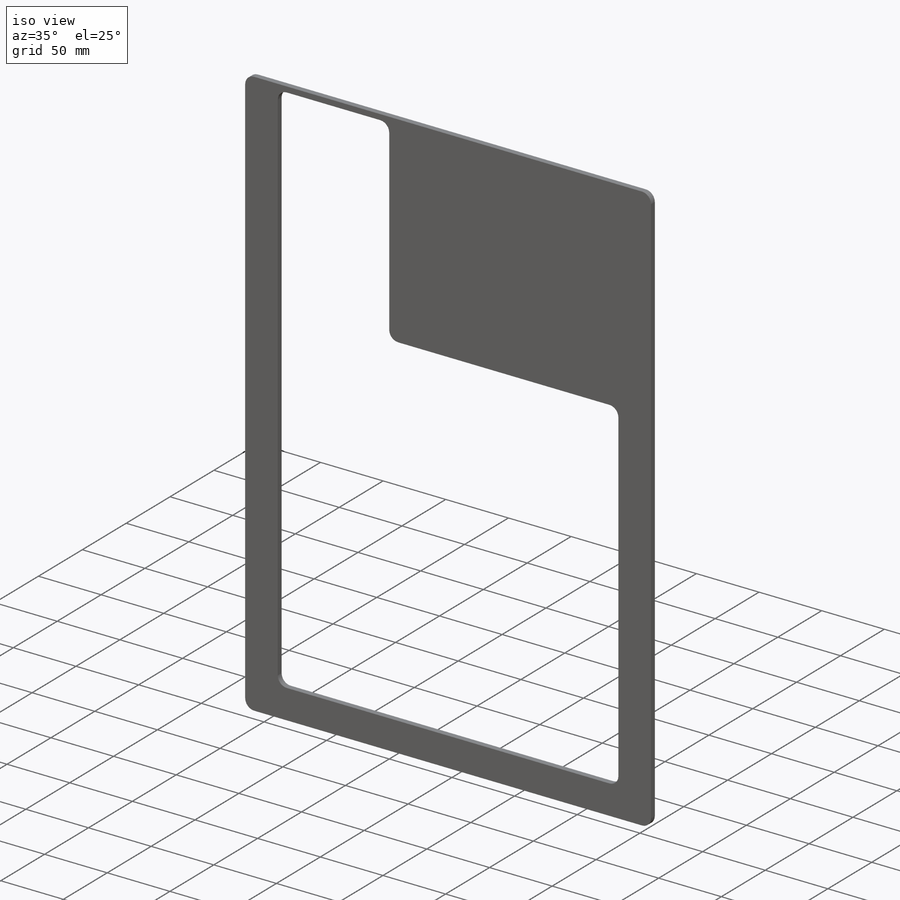
[diagram: iso view]
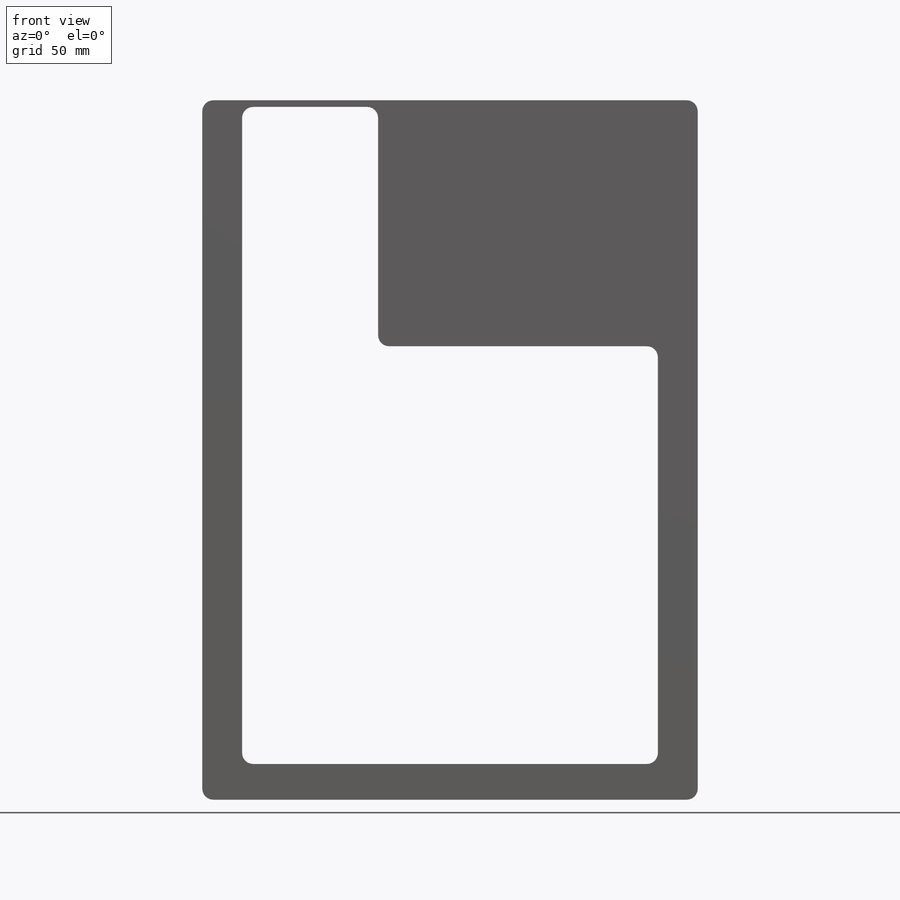
[diagram: front view]
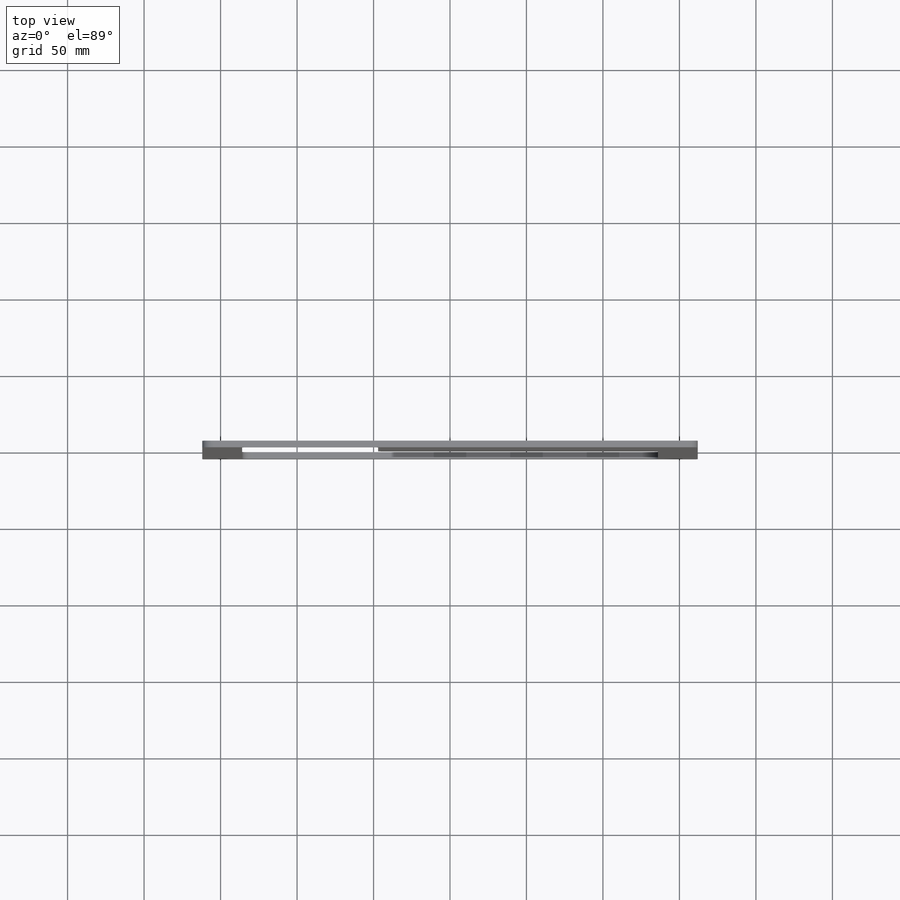
[diagram: top view]
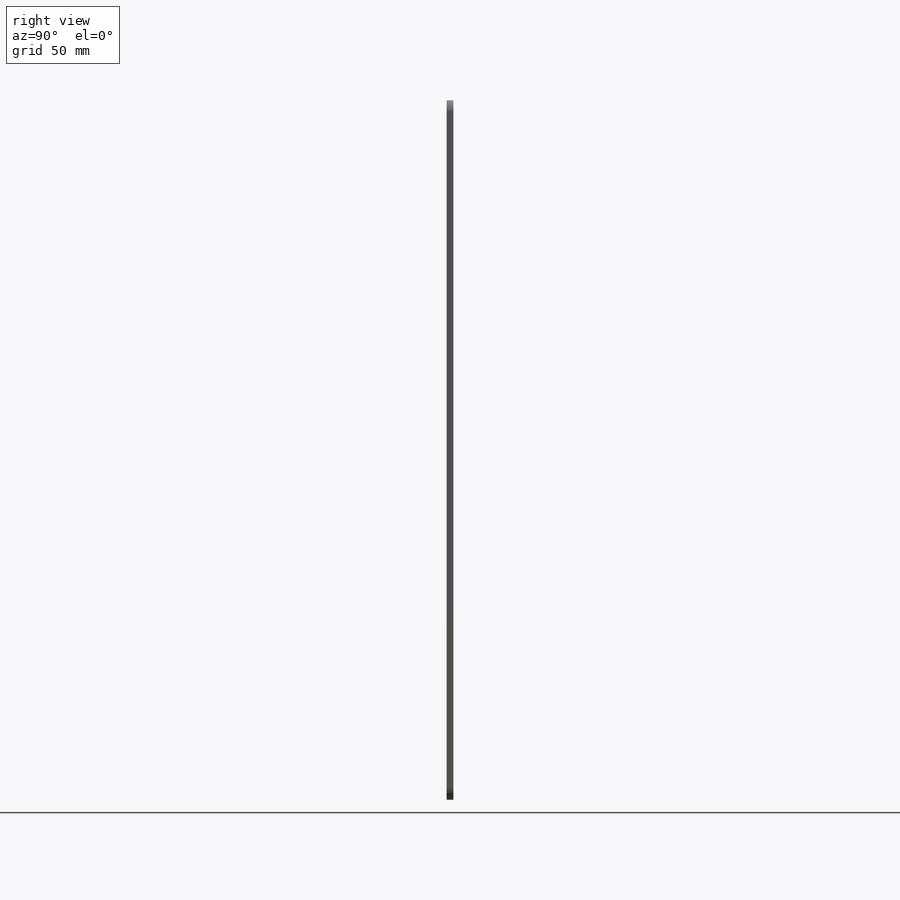
[diagram: right view]
SOLIDWORKS PART (.sldprt)
format: sldprt  version: not decoded by parser v0  size: 206,336 bytes
history: native  units: mm
features: sketch x3, cut_extrude x2, fillet x2, material x1, extrude x1 (+12 scaffold rows collapsed)
feature tree (21):
  scaffold x12  (default folders/planes/origin — collapsed)
  material  "Material <not specified>"
  sketch  "Sketch1"  dims[D1=323.85mm D2=457.2mm]
  extrude  "Boss-Extrude1"  Depth=4.3434mm
  sketch  "Sketch2"  dims[D1=271.78mm D2=273.05mm D3=23.368mm]
  cut_extrude  "Cut-Extrude1"  [1 undecoded]
  fillet  "Fillet1"  Radius=7.14375mm
  sketch  "Sketch4"  dims[D1=88.9mm D2=4.3434mm]
  cut_extrude  "Cut-Extrude3"  [1 undecoded]
  fillet  "Fillet2"  Radius=7.14375mm
decode coverage: 6 of 8 modeling features carry decoded parameters
note: 2 parameter values undecoded
note: suppression state not decoded; provenance and decode notes live in map.json
